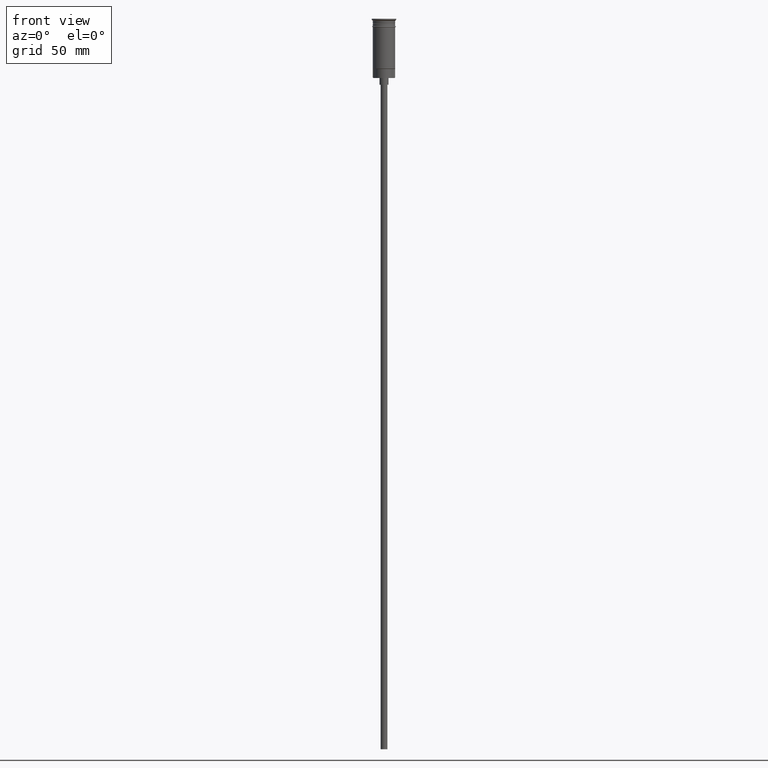
[diagram: clean part render]
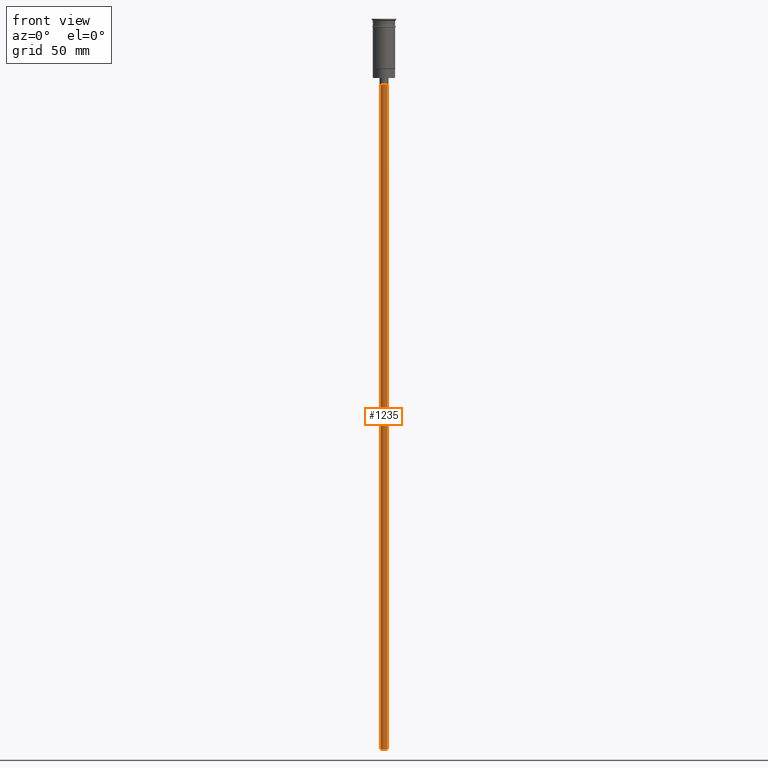
[diagram: same view with one face highlighted and labeled with its STEP entity id]
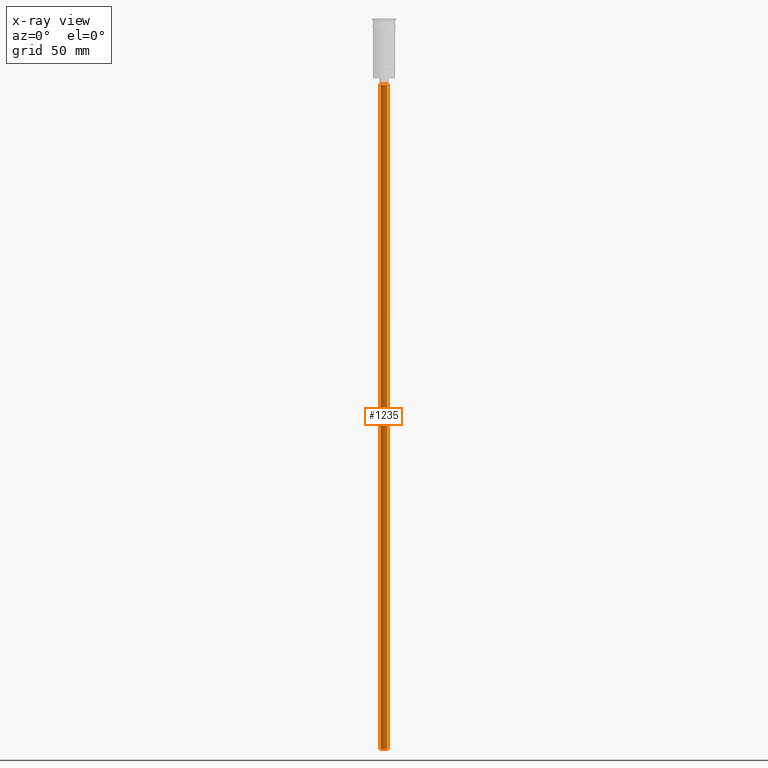
[diagram: x-ray of the same camera — body ghosted, the highlighted face saturated]
A machine part, front view. The second image highlights one B-rep face of the part: STEP entity #1235.
The next image is the same camera in x-ray: the body ghosted, the highlighted face saturated — about 0% of this face is hidden behind the body in this view.
In plain terms, the highlighted cylindrical surface (edge-blend (fillet) strip) has radius 1.5 mm, axis along (-0, -0, 1).
Its self-contained STEP definition (entity closure, byte-faithful):
#2 = CIRCLE ( 'NONE', #214, 1.500000000000000222 ) ;
#41 = CYLINDRICAL_SURFACE ( 'NONE', #811, 1.500000000000000222 ) ;
#59 = DIRECTION ( 'NONE',  ( -1.000000000000000000, 0.000000000000000000, 0.000000000000000000 ) ) ;
#139 = AXIS2_PLACEMENT_3D ( 'NONE', #443, #179, #59 ) ;
#141 = EDGE_CURVE ( 'NONE', #1360, #478, #1465, .T. ) ;
#166 = LINE ( 'NONE', #314, #1190 ) ;
#179 = DIRECTION ( 'NONE',  ( 0.000000000000000000, 0.000000000000000000, -1.000000000000000000 ) ) ;
#214 = AXIS2_PLACEMENT_3D ( 'NONE', #481, #1576, #733 ) ;
#262 = VERTEX_POINT ( 'NONE', #297 ) ;
#297 = CARTESIAN_POINT ( 'NONE',  ( 1.500000000000000222, 0.000000000000000000, -29.50000000000000000 ) ) ;
#314 = CARTESIAN_POINT ( 'NONE',  ( 1.500000000000000222, 0.000000000000000000, -326.5000000000000000 ) ) ;
#353 = EDGE_CURVE ( 'NONE', #427, #262, #166, .T. ) ;
#427 = VERTEX_POINT ( 'NONE', #1147 ) ;
#443 = CARTESIAN_POINT ( 'NONE',  ( 0.000000000000000000, 0.000000000000000000, -326.5000000000000000 ) ) ;
#478 = VERTEX_POINT ( 'NONE', #900 ) ;
#481 = CARTESIAN_POINT ( 'NONE',  ( 0.000000000000000000, 0.000000000000000000, -29.50000000000000000 ) ) ;
#491 = ORIENTED_EDGE ( 'NONE', *, *, #799, .T. ) ;
#567 = CARTESIAN_POINT ( 'NONE',  ( -1.500000000000000222, 1.836970198721030181E-16, -326.5000000000000000 ) ) ;
#623 = CARTESIAN_POINT ( 'NONE',  ( -1.500000000000000222, 1.836970198721030181E-16, -326.5000000000000000 ) ) ;
#658 = CARTESIAN_POINT ( 'NONE',  ( 0.000000000000000000, 0.000000000000000000, -326.5000000000000000 ) ) ;
#715 = ORIENTED_EDGE ( 'NONE', *, *, #1371, .F. ) ;
#723 = ORIENTED_EDGE ( 'NONE', *, *, #353, .T. ) ;
#733 = DIRECTION ( 'NONE',  ( -1.000000000000000000, 0.000000000000000000, 0.000000000000000000 ) ) ;
#749 = DIRECTION ( 'NONE',  ( 1.000000000000000000, 0.000000000000000000, 0.000000000000000000 ) ) ;
#799 = EDGE_CURVE ( 'NONE', #262, #478, #2, .T. ) ;
#811 = AXIS2_PLACEMENT_3D ( 'NONE', #658, #865, #749 ) ;
#865 = DIRECTION ( 'NONE',  ( -0.000000000000000000, -0.000000000000000000, 1.000000000000000000 ) ) ;
#900 = CARTESIAN_POINT ( 'NONE',  ( -1.500000000000000222, 1.836970198721030181E-16, -29.50000000000000000 ) ) ;
#928 = DIRECTION ( 'NONE',  ( -0.000000000000000000, -0.000000000000000000, 1.000000000000000000 ) ) ;
#996 = DIRECTION ( 'NONE',  ( -0.000000000000000000, -0.000000000000000000, 1.000000000000000000 ) ) ;
#1014 = CIRCLE ( 'NONE', #139, 1.500000000000000222 ) ;
#1088 = EDGE_LOOP ( 'NONE', ( #1127, #715, #723, #491 ) ) ;
#1127 = ORIENTED_EDGE ( 'NONE', *, *, #141, .F. ) ;
#1147 = CARTESIAN_POINT ( 'NONE',  ( 1.500000000000000222, 0.000000000000000000, -326.5000000000000000 ) ) ;
#1190 = VECTOR ( 'NONE', #928, 1000.000000000000000 ) ;
#1231 = FACE_OUTER_BOUND ( 'NONE', #1088, .T. ) ;
#1235 = ADVANCED_FACE ( 'NONE', ( #1231 ), #41, .T. ) ;
#1360 = VERTEX_POINT ( 'NONE', #567 ) ;
#1371 = EDGE_CURVE ( 'NONE', #427, #1360, #1014, .T. ) ;
#1465 = LINE ( 'NONE', #623, #1476 ) ;
#1476 = VECTOR ( 'NONE', #996, 1000.000000000000000 ) ;
#1576 = DIRECTION ( 'NONE',  ( 0.000000000000000000, 0.000000000000000000, -1.000000000000000000 ) ) ;